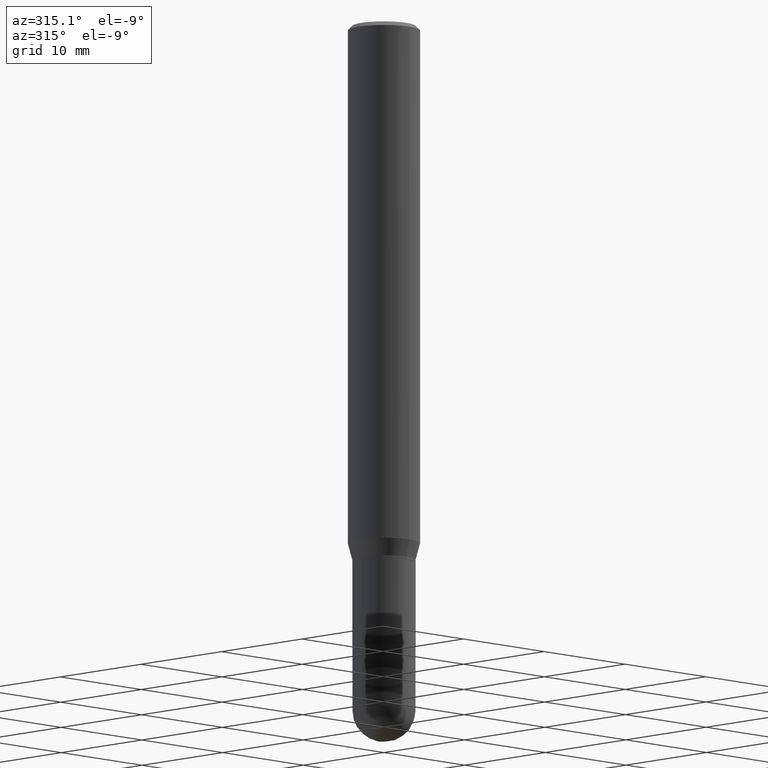
[diagram: clean part render]
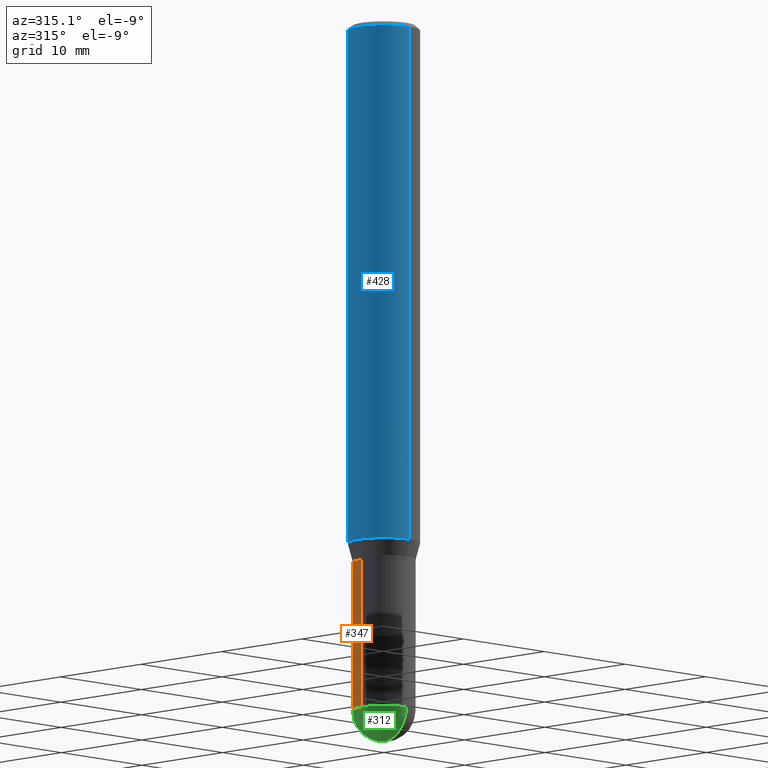
[diagram: same view with three faces highlighted in distinct colors, each labeled with its STEP entity id]
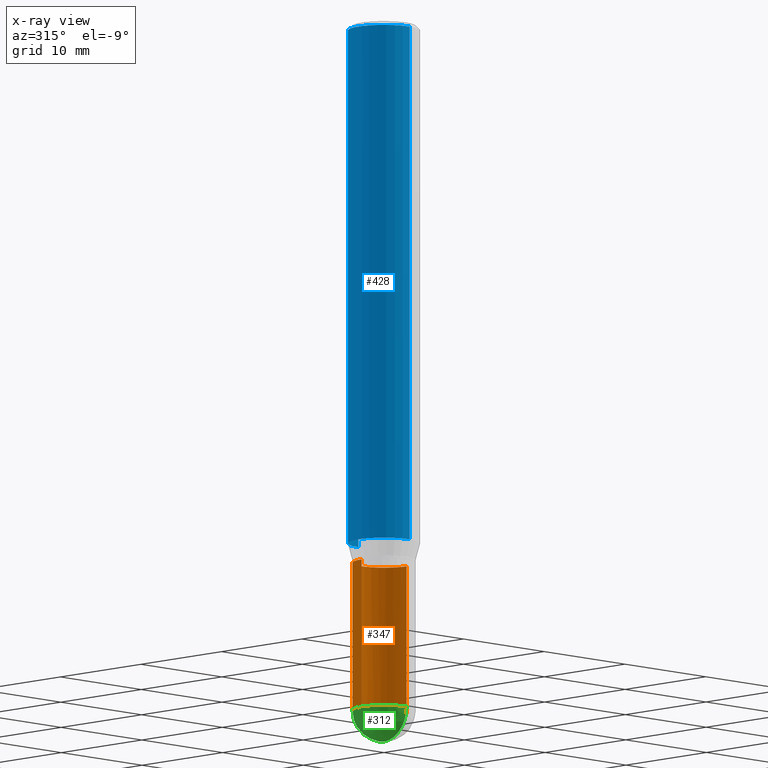
[diagram: x-ray of the same camera — body ghosted, the three highlighted faces saturated]
A machine part, auxiliary view with three faces highlighted in distinct colors.
The next image is the same camera in x-ray (body ghosted, the three faces saturated) — at least one of them is partly hidden behind the body in this view.
Their STEP definitions:

[orange] entity #347 — the highlighted cylindrical surface (edge-blend (fillet) strip) has radius 2.7788 mm, axis along (-0, 0, 1).
#23 = VERTEX_POINT ( 'NONE', #124 ) ;
#37 = VERTEX_POINT ( 'NONE', #279 ) ;
#39 = ORIENTED_EDGE ( 'NONE', *, *, #466, .F. ) ;
#42 = AXIS2_PLACEMENT_3D ( 'NONE', #399, #277, #201 ) ;
#55 = CARTESIAN_POINT ( 'NONE',  ( 0.000000000000000000, 0.000000000000000000, 0.000000000000000000 ) ) ;
#59 = EDGE_CURVE ( 'NONE', #339, #37, #260, .T. ) ;
#70 = DIRECTION ( 'NONE',  ( -2.445468806185136877E-29, 3.491481338843145188E-15, 1.000000000000000000 ) ) ;
#76 = EDGE_CURVE ( 'NONE', #23, #505, #198, .T. ) ;
#106 = CARTESIAN_POINT ( 'NONE',  ( 4.585254011597131119E-29, -6.546527510330898707E-15, -1.875000000000000000 ) ) ;
#107 = AXIS2_PLACEMENT_3D ( 'NONE', #442, #295, #215 ) ;
#124 = CARTESIAN_POINT ( 'NONE',  ( -0.1093999999999999972, -6.669297646563111468E-15, -2.390600000000000058 ) ) ;
#138 = CARTESIAN_POINT ( 'NONE',  ( 0.1093999999999999972, -8.210567516423539018E-15, -2.390600000000000058 ) ) ;
#142 = ORIENTED_EDGE ( 'NONE', *, *, #276, .T. ) ;
#143 = FACE_OUTER_BOUND ( 'NONE', #309, .T. ) ;
#155 = AXIS2_PLACEMENT_3D ( 'NONE', #55, #184, #340 ) ;
#178 = VECTOR ( 'NONE', #70, 39.37007874015748143 ) ;
#184 = DIRECTION ( 'NONE',  ( -2.445468806185136597E-29, 3.491481338843145583E-15, 1.000000000000000000 ) ) ;
#198 = LINE ( 'NONE', #354, #503 ) ;
#201 = DIRECTION ( 'NONE',  ( 1.000000000000000000, -6.982962677686269866E-15, 0.000000000000000000 ) ) ;
#205 = CYLINDRICAL_SURFACE ( 'NONE', #155, 0.1093999999999999972 ) ;
#215 = DIRECTION ( 'NONE',  ( 1.000000000000000000, -6.982962677686269866E-15, 0.000000000000000000 ) ) ;
#231 = CARTESIAN_POINT ( 'NONE',  ( 0.1093999999999999972, -7.639361169388775718E-16, 5.334537392720753909E-30 ) ) ;
#260 = CIRCLE ( 'NONE', #42, 0.1093999999999999972 ) ;
#276 = EDGE_CURVE ( 'NONE', #37, #23, #436, .T. ) ;
#277 = DIRECTION ( 'NONE',  ( -2.445468806185136597E-29, 3.491481338843145583E-15, 1.000000000000000000 ) ) ;
#279 = CARTESIAN_POINT ( 'NONE',  ( 7.639361169389358489E-16, 0.1093999999999916289, -2.390600000000000058 ) ) ;
#287 = ORIENTED_EDGE ( 'NONE', *, *, #59, .T. ) ;
#290 = CARTESIAN_POINT ( 'NONE',  ( 0.1093999999999999972, -7.310463627269777068E-15, -1.875000000000000000 ) ) ;
#294 = VERTEX_POINT ( 'NONE', #290 ) ;
#295 = DIRECTION ( 'NONE',  ( -2.445468806185136597E-29, 3.491481338843145583E-15, 1.000000000000000000 ) ) ;
#301 = DIRECTION ( 'NONE',  ( -2.445468806185136597E-29, 3.491481338843145583E-15, 1.000000000000000000 ) ) ;
#309 = EDGE_LOOP ( 'NONE', ( #142, #452, #39, #420, #287 ) ) ;
#339 = VERTEX_POINT ( 'NONE', #138 ) ;
#340 = DIRECTION ( 'NONE',  ( 1.000000000000000000, -6.982962677686266711E-15, 4.876176775795935793E-29 ) ) ;
#347 = ADVANCED_FACE ( 'NONE', ( #143 ), #205, .T. ) ;
#354 = CARTESIAN_POINT ( 'NONE',  ( -0.1093999999999999972, 7.773337529215495838E-16, -5.381314988738867416E-30 ) ) ;
#380 = EDGE_CURVE ( 'NONE', #339, #294, #421, .T. ) ;
#387 = DIRECTION ( 'NONE',  ( 1.000000000000000000, -6.982962677686269866E-15, 0.000000000000000000 ) ) ;
#390 = CIRCLE ( 'NONE', #405, 0.1093999999999999972 ) ;
#396 = DIRECTION ( 'NONE',  ( -2.445468806185136877E-29, 3.491481338843145188E-15, 1.000000000000000000 ) ) ;
#399 = CARTESIAN_POINT ( 'NONE',  ( 5.846137728066187200E-29, -8.346735288638422607E-15, -2.390600000000000058 ) ) ;
#405 = AXIS2_PLACEMENT_3D ( 'NONE', #106, #301, #387 ) ;
#420 = ORIENTED_EDGE ( 'NONE', *, *, #380, .F. ) ;
#421 = LINE ( 'NONE', #231, #178 ) ;
#436 = CIRCLE ( 'NONE', #107, 0.1093999999999999972 ) ;
#442 = CARTESIAN_POINT ( 'NONE',  ( 5.846137728066187200E-29, -8.346735288638422607E-15, -2.390600000000000058 ) ) ;
#452 = ORIENTED_EDGE ( 'NONE', *, *, #76, .T. ) ;
#466 = EDGE_CURVE ( 'NONE', #294, #505, #390, .T. ) ;
#503 = VECTOR ( 'NONE', #396, 39.37007874015748143 ) ;
#505 = VERTEX_POINT ( 'NONE', #508 ) ;
#508 = CARTESIAN_POINT ( 'NONE',  ( -0.1093999999999999972, -6.669297646563111468E-15, -1.875000000000000000 ) ) ;

[blue] entity #428 — the highlighted cylindrical surface (edge-blend (fillet) strip) has radius 3.175 mm, axis along (-0, 0, 1).
#29 = FACE_OUTER_BOUND ( 'NONE', #302, .T. ) ;
#34 = CARTESIAN_POINT ( 'NONE',  ( 0.000000000000000000, 0.000000000000000000, 0.000000000000000000 ) ) ;
#46 = EDGE_CURVE ( 'NONE', #375, #364, #512, .T. ) ;
#62 = CARTESIAN_POINT ( 'NONE',  ( -8.728703347107832402E-16, -0.1250000000000000000, 4.364686386796093686E-16 ) ) ;
#64 = ORIENTED_EDGE ( 'NONE', *, *, #46, .F. ) ;
#97 = CARTESIAN_POINT ( 'NONE',  ( 8.881784197001251337E-16, 0.1250000000000000000, -4.364686386796093686E-16 ) ) ;
#110 = CYLINDRICAL_SURFACE ( 'NONE', #240, 0.1250000000000000000 ) ;
#171 = LINE ( 'NONE', #97, #482 ) ;
#187 = DIRECTION ( 'NONE',  ( -2.445281822978917058E-29, 3.491749109436874948E-15, 1.000000000000000000 ) ) ;
#195 = CIRCLE ( 'NONE', #214, 0.1250000000000000000 ) ;
#214 = AXIS2_PLACEMENT_3D ( 'NONE', #498, #248, #404 ) ;
#240 = AXIS2_PLACEMENT_3D ( 'NONE', #34, #187, #419 ) ;
#248 = DIRECTION ( 'NONE',  ( -2.445281822978917058E-29, 3.491749109436874948E-15, 1.000000000000000000 ) ) ;
#252 = EDGE_CURVE ( 'NONE', #384, #375, #171, .T. ) ;
#258 = EDGE_CURVE ( 'NONE', #330, #364, #402, .T. ) ;
#259 = VECTOR ( 'NONE', #286, 39.37007874015748143 ) ;
#271 = CARTESIAN_POINT ( 'NONE',  ( -8.728703347107828458E-16, -0.1250000000000000555, -0.01499999999999949984 ) ) ;
#286 = DIRECTION ( 'NONE',  ( -2.445281822978917058E-29, 3.491749109436874554E-15, 1.000000000000000000 ) ) ;
#302 = EDGE_LOOP ( 'NONE', ( #497, #378, #411, #64 ) ) ;
#317 = CARTESIAN_POINT ( 'NONE',  ( 3.667922734468360820E-31, -5.237623664155290976E-17, -0.01499999999999993873 ) ) ;
#323 = DIRECTION ( 'NONE',  ( -2.445281822978917058E-29, 3.491749109436874554E-15, 1.000000000000000000 ) ) ;
#329 = CARTESIAN_POINT ( 'NONE',  ( -8.728703347107391626E-16, -0.1250000000000063283, -1.806780007401924681 ) ) ;
#330 = VERTEX_POINT ( 'NONE', #329 ) ;
#342 = EDGE_CURVE ( 'NONE', #384, #330, #195, .T. ) ;
#364 = VERTEX_POINT ( 'NONE', #271 ) ;
#375 = VERTEX_POINT ( 'NONE', #425 ) ;
#378 = ORIENTED_EDGE ( 'NONE', *, *, #342, .T. ) ;
#384 = VERTEX_POINT ( 'NONE', #511 ) ;
#392 = DIRECTION ( 'NONE',  ( -2.445281822978917058E-29, 3.491749109436874948E-15, 1.000000000000000000 ) ) ;
#402 = LINE ( 'NONE', #62, #259 ) ;
#404 = DIRECTION ( 'NONE',  ( -6.982962677686265922E-15, -1.000000000000000000, 4.370956789862821150E-15 ) ) ;
#411 = ORIENTED_EDGE ( 'NONE', *, *, #258, .T. ) ;
#419 = DIRECTION ( 'NONE',  ( -6.982962677686265922E-15, -1.000000000000000000, 3.491749109436874948E-15 ) ) ;
#425 = CARTESIAN_POINT ( 'NONE',  ( 8.881784197001696058E-16, 0.1249999999999999584, -0.01500000000000037588 ) ) ;
#428 = ADVANCED_FACE ( 'NONE', ( #29 ), #110, .T. ) ;
#432 = DIRECTION ( 'NONE',  ( -6.982962677686265922E-15, -1.000000000000000000, 3.500180241882337261E-15 ) ) ;
#447 = AXIS2_PLACEMENT_3D ( 'NONE', #317, #392, #432 ) ;
#482 = VECTOR ( 'NONE', #323, 39.37007874015748143 ) ;
#497 = ORIENTED_EDGE ( 'NONE', *, *, #252, .F. ) ;
#498 = CARTESIAN_POINT ( 'NONE',  ( 4.418086310221640992E-29, -6.308822481794022912E-15, -1.806780007401925348 ) ) ;
#511 = CARTESIAN_POINT ( 'NONE',  ( 8.881784197001690141E-16, 0.1249999999999936579, -1.806780007401925792 ) ) ;
#512 = CIRCLE ( 'NONE', #447, 0.1250000000000000000 ) ;

[green] entity #312 — the highlighted spherical surface has radius 2.7788 mm.
#21 = DIRECTION ( 'NONE',  ( -2.445468806185136597E-29, 3.491481338843145583E-15, 1.000000000000000000 ) ) ;
#23 = VERTEX_POINT ( 'NONE', #124 ) ;
#26 = CIRCLE ( 'NONE', #351, 0.1093999999999999695 ) ;
#30 = ORIENTED_EDGE ( 'NONE', *, *, #276, .F. ) ;
#32 = ORIENTED_EDGE ( 'NONE', *, *, #315, .T. ) ;
#37 = VERTEX_POINT ( 'NONE', #279 ) ;
#47 = DIRECTION ( 'NONE',  ( 1.000000000000000000, -6.982962677686265922E-15, 4.883557194083112340E-29 ) ) ;
#53 = CARTESIAN_POINT ( 'NONE',  ( 5.836782208862565620E-29, -8.360132924621096591E-15, -2.390600000000000058 ) ) ;
#57 = DIRECTION ( 'NONE',  ( 1.000000000000000000, -6.982962677686269866E-15, 0.000000000000000000 ) ) ;
#58 = EDGE_LOOP ( 'NONE', ( #139, #32, #188, #30 ) ) ;
#93 = EDGE_CURVE ( 'NONE', #509, #37, #200, .T. ) ;
#107 = AXIS2_PLACEMENT_3D ( 'NONE', #442, #295, #215 ) ;
#124 = CARTESIAN_POINT ( 'NONE',  ( -0.1093999999999999972, -6.669297646563111468E-15, -2.390600000000000058 ) ) ;
#130 = CIRCLE ( 'NONE', #181, 0.1093999999999999972 ) ;
#134 = DIRECTION ( 'NONE',  ( -1.000000000000000000, 7.105427357601001070E-15, -4.926315508542082329E-29 ) ) ;
#139 = ORIENTED_EDGE ( 'NONE', *, *, #93, .F. ) ;
#140 = AXIS2_PLACEMENT_3D ( 'NONE', #407, #327, #412 ) ;
#158 = CARTESIAN_POINT ( 'NONE',  ( 5.836782208862565620E-29, -8.360132924621096591E-15, -2.390600000000000058 ) ) ;
#179 = FACE_OUTER_BOUND ( 'NONE', #58, .T. ) ;
#181 = AXIS2_PLACEMENT_3D ( 'NONE', #293, #21, #57 ) ;
#188 = ORIENTED_EDGE ( 'NONE', *, *, #268, .F. ) ;
#200 = CIRCLE ( 'NONE', #454, 0.1093999999999999695 ) ;
#209 = DIRECTION ( 'NONE',  ( -7.105427357601000281E-15, -1.000000000000000000, 0.000000000000000000 ) ) ;
#215 = DIRECTION ( 'NONE',  ( 1.000000000000000000, -6.982962677686269866E-15, 0.000000000000000000 ) ) ;
#253 = SPHERICAL_SURFACE ( 'NONE', #140, 0.1093999999999999695 ) ;
#268 = EDGE_CURVE ( 'NONE', #23, #325, #130, .T. ) ;
#276 = EDGE_CURVE ( 'NONE', #37, #23, #436, .T. ) ;
#279 = CARTESIAN_POINT ( 'NONE',  ( 7.639361169389358489E-16, 0.1093999999999916289, -2.390600000000000058 ) ) ;
#293 = CARTESIAN_POINT ( 'NONE',  ( 5.846137728066187200E-29, -8.346735288638422607E-15, -2.390600000000000058 ) ) ;
#295 = DIRECTION ( 'NONE',  ( -2.445468806185136597E-29, 3.491481338843145583E-15, 1.000000000000000000 ) ) ;
#312 = ADVANCED_FACE ( 'NONE', ( #179 ), #253, .T. ) ;
#314 = DIRECTION ( 'NONE',  ( 6.982962677686265133E-15, 1.000000000000000000, 0.000000000000000000 ) ) ;
#315 = EDGE_CURVE ( 'NONE', #509, #325, #26, .T. ) ;
#325 = VERTEX_POINT ( 'NONE', #332 ) ;
#327 = DIRECTION ( 'NONE',  ( -1.000000000000000000, 6.982962677686265922E-15, -4.883557194083112340E-29 ) ) ;
#332 = CARTESIAN_POINT ( 'NONE',  ( -7.773337529214909122E-16, -0.1094000000000083378, -2.390599999999999614 ) ) ;
#351 = AXIS2_PLACEMENT_3D ( 'NONE', #53, #134, #209 ) ;
#379 = CARTESIAN_POINT ( 'NONE',  ( 6.108994255861030141E-29, -8.735402165099200357E-15, -2.500000000000000000 ) ) ;
#407 = CARTESIAN_POINT ( 'NONE',  ( 5.836782208862565620E-29, -8.360132924621096591E-15, -2.390600000000000058 ) ) ;
#412 = DIRECTION ( 'NONE',  ( 6.982962677686265922E-15, 1.000000000000000000, -2.497118824190369227E-15 ) ) ;
#436 = CIRCLE ( 'NONE', #107, 0.1093999999999999972 ) ;
#442 = CARTESIAN_POINT ( 'NONE',  ( 5.846137728066187200E-29, -8.346735288638422607E-15, -2.390600000000000058 ) ) ;
#454 = AXIS2_PLACEMENT_3D ( 'NONE', #158, #47, #314 ) ;
#509 = VERTEX_POINT ( 'NONE', #379 ) ;